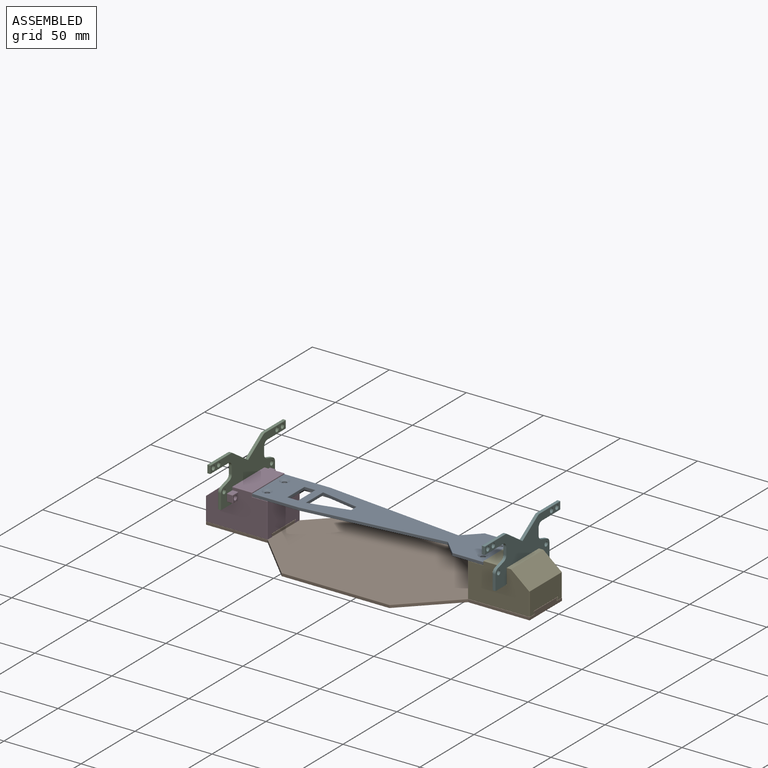
[diagram: assembled view]
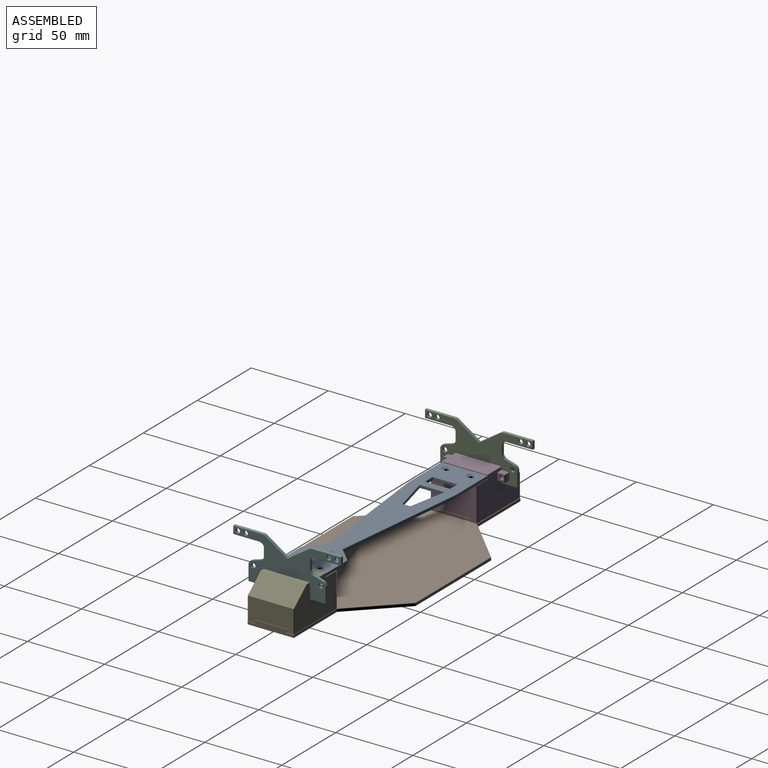
[diagram: assembled view, second angle]
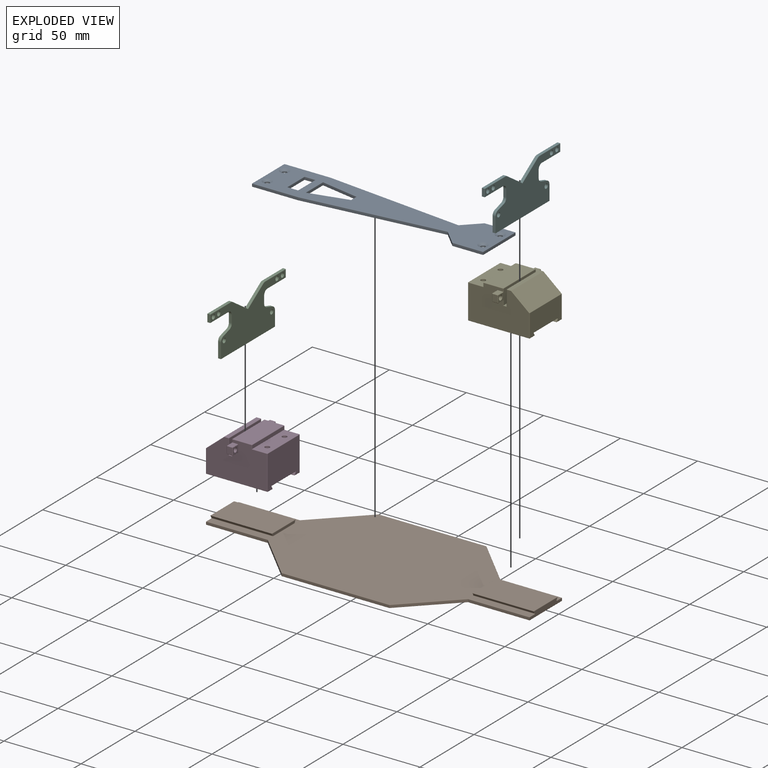
[diagram: exploded view]
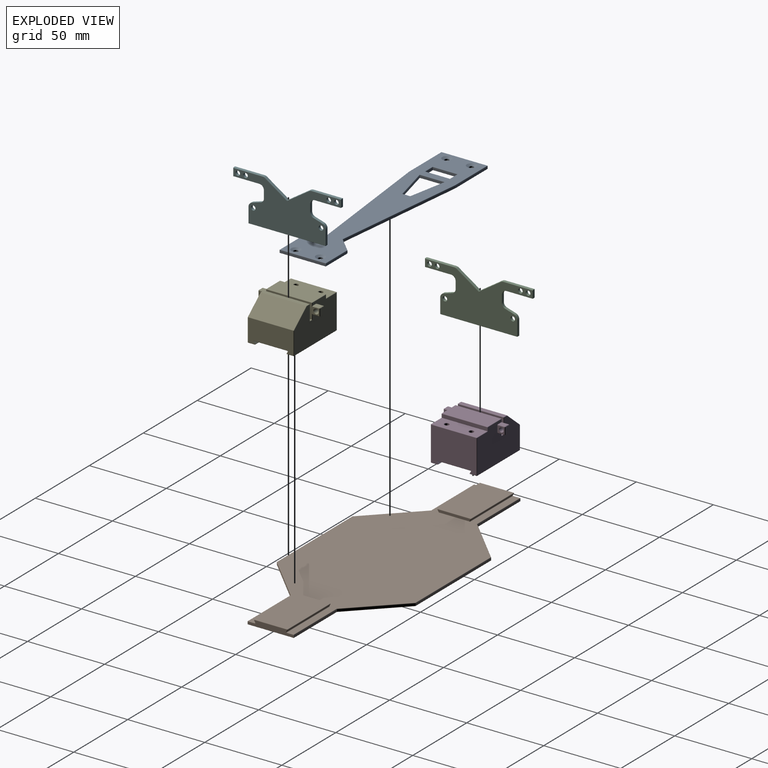
[diagram: exploded view, second angle]
ASSEMBLY  parts=6 mates=5
PART A: 62 faces, bbox 150x30x2 mm
  f0: plane 7x1.5mm, normal (0,-1,0), area 10.5mm2, adj f1,f18,f25,f42
  f1: plane 16x1.5mm, normal (-1,0,0), area 24mm2, adj f0,f2,f24,f40
  f2: plane 7.5x1.75mm, normal (0,1,0), area 12.3mm2, adj f1,f18,f23,f24,f26,f41
  f3: plane 16x1.5mm, normal (1,0,0), area 24mm2, adj f4,f19,f28,f46
  f4: plane 25x4.76mm, normal (-0.19,-0.98,0), area 38.2mm2, adj f3,f5,f27,f44
  f5: plane 5.51x1.75mm, normal (-1,0,0), area 8.8mm2, adj f4,f19,f23,f27,f29,f45
  f6: plane 90x10mm, normal (0.11,0.99,0), area 135.8mm2, adj f7,f20,f37,f55
  f7: plane 30x1.5mm, normal (0,1,0), area 45mm2, adj f6,f8,f35,f53
  f8: plane 30x1.5mm, normal (-1,0,0), area 45mm2, adj f7,f9,f33,f51
  f9: plane 30x1.5mm, normal (0,-1,0), area 45mm2, adj f8,f10,f31,f49
  f10: plane 90x10mm, normal (0.11,-0.99,0), area 135.8mm2, adj f9,f11,f30,f48
  f11: plane 10x10mm, normal (-0.71,-0.71,0), area 21.2mm2, adj f10,f12,f32,f50
  f12: plane 20x1.5mm, normal (0,-1,0), area 30mm2, adj f11,f13,f34,f52
  f13: plane 30x1.5mm, normal (1,0,0), area 45mm2, adj f12,f14,f36,f54
  f14: plane 20x1.5mm, normal (0,1,0), area 30mm2, adj f13,f20,f38,f56
  f15: cylinder r=1.5mm len=3mm, axis (0,0,-1), area 9.4mm2, adj f23,f59
  f16: cylinder r=1.5mm len=3mm, axis (0,0,-1), area 9.4mm2, adj f23,f60
  f17: cylinder r=1.5mm len=3mm, axis (0,0,-1), area 9.4mm2, adj f23,f61
  f18: plane 16x1.5mm, normal (1,0,0), area 24mm2, adj f0,f2,f26,f43
  f19: plane 25x6.24mm, normal (-0.24,0.97,0), area 38.7mm2, adj f3,f5,f29,f47
  f20: plane 10x10mm, normal (-0.71,0.71,0), area 21.2mm2, adj f6,f14,f39,f57
  f21: cylinder r=1.5mm len=3mm, axis (0,0,-1), area 9.4mm2, adj f23,f58
  f22: plane 149.5x29.5mm, normal (0,0,1), area 2890.2mm2, adj f40,f41,f42,f43,f44,f45,f46,f47
  f23: plane 149.5x29.5mm, normal (0,0,-1), area 2978.3mm2, adj f2,f5,f15,f16,f17,f21,f24,f25
  f24: cylinder r=0.25mm len=16.25mm, axis (0,-1,0), area 6.3mm2, adj f1,f2,f23,f25
  f25: cylinder r=0.25mm len=7.5mm, axis (1,0,0), area 2.8mm2, adj f0,f23,f24,f26
  f26: cylinder r=0.25mm len=16.25mm, axis (0,1,0), area 6.3mm2, adj f2,f18,f23,f25
  f27: cylinder r=0.25mm len=25.34mm, axis (0.98,-0.19,0), area 10mm2, adj f4,f5,f23,f28
  f28: cylinder r=0.25mm len=16.62mm, axis (0,1,0), area 6.4mm2, adj f3,f23,f27,f29
  f29: cylinder r=0.25mm len=25.37mm, axis (-0.97,-0.24,0), area 10.2mm2, adj f5,f19,f23,f28
  f30: cylinder r=0.25mm len=90.15mm, axis (0.99,0.11,0), area 35.6mm2, adj f10,f23,f31,f32
  f31: cylinder r=0.25mm len=30mm, axis (1,0,0), area 11.7mm2, adj f9,f23,f30,f33
  f32: cylinder r=0.25mm len=10.26mm, axis (0.71,-0.71,0), area 5.6mm2, adj f11,f23,f30,f34
  f33: cylinder r=0.25mm len=30mm, axis (0,-1,0), area 11.7mm2, adj f8,f23,f31,f35
  f34: cylinder r=0.25mm len=20mm, axis (1,0,0), area 7.8mm2, adj f12,f23,f32,f36
  f35: cylinder r=0.25mm len=30mm, axis (-1,0,0), area 11.7mm2, adj f7,f23,f33,f37
  f36: cylinder r=0.25mm len=30mm, axis (0,1,0), area 11.7mm2, adj f13,f23,f34,f38
  f37: cylinder r=0.25mm len=90.15mm, axis (-0.99,0.11,0), area 35.6mm2, adj f6,f23,f35,f39
  f38: cylinder r=0.25mm len=20mm, axis (-1,0,0), area 7.8mm2, adj f14,f23,f36,f39
  f39: cylinder r=0.25mm len=10.26mm, axis (-0.71,-0.71,0), area 5.6mm2, adj f20,f23,f37,f38
  f40: cylinder r=0.25mm len=16.5mm, axis (0,1,0), area 6.4mm2, adj f1,f22,f41,f42
  f41: cylinder r=0.25mm len=7.5mm, axis (1,0,0), area 2.8mm2, adj f2,f22,f40,f43
  f42: cylinder r=0.25mm len=7.5mm, axis (-1,0,0), area 2.8mm2, adj f0,f22,f40,f43
  f43: cylinder r=0.25mm len=16.5mm, axis (0,-1,0), area 6.4mm2, adj f18,f22,f41,f42
  f44: cylinder r=0.25mm len=25.55mm, axis (-0.98,0.19,0), area 10.1mm2, adj f4,f22,f45,f46
  f45: cylinder r=0.25mm len=5.4mm, axis (0,1,0), area 2mm2, adj f5,f22,f44,f47
  f46: cylinder r=0.25mm len=16.62mm, axis (0,-1,0), area 6.4mm2, adj f3,f22,f44,f47
  f47: cylinder r=0.25mm len=25.56mm, axis (0.97,0.24,0), area 10.2mm2, adj f19,f22,f45,f46
  f48: cylinder r=0.25mm len=90.15mm, axis (-0.99,-0.11,0), area 35.6mm2, adj f10,f22,f49,f50
  f49: cylinder r=0.25mm len=30mm, axis (-1,0,0), area 11.7mm2, adj f9,f22,f48,f51
  f50: cylinder r=0.25mm len=10.26mm, axis (-0.71,0.71,0), area 5.6mm2, adj f11,f22,f48,f52
  f51: cylinder r=0.25mm len=30mm, axis (0,1,0), area 11.7mm2, adj f8,f22,f49,f53
  f52: cylinder r=0.25mm len=20mm, axis (-1,0,0), area 7.8mm2, adj f12,f22,f50,f54
  f53: cylinder r=0.25mm len=30mm, axis (1,0,0), area 11.7mm2, adj f7,f22,f51,f55
  f54: cylinder r=0.25mm len=30mm, axis (0,-1,0), area 11.7mm2, adj f13,f22,f52,f56
  f55: cylinder r=0.25mm len=90.15mm, axis (0.99,-0.11,0), area 35.6mm2, adj f6,f22,f53,f57
  f56: cylinder r=0.25mm len=20mm, axis (1,0,0), area 7.8mm2, adj f14,f22,f54,f57
  f57: cylinder r=0.25mm len=10.26mm, axis (0.71,0.71,0), area 5.6mm2, adj f20,f22,f55,f56
  f58: cone r=1.5mm half-angle=56.3deg, axis (0,0,1), area 25.5mm2, adj f21,f22
  f59: cone r=1.5mm half-angle=56.3deg, axis (0,0,1), area 25.5mm2, adj f15,f22
  f60: cone r=1.5mm half-angle=56.3deg, axis (0,0,1), area 25.5mm2, adj f16,f22
  f61: cone r=1.5mm half-angle=56.3deg, axis (0,0,1), area 25.5mm2, adj f17,f22
PART B: 83 faces, bbox 210x90x4.1 mm
  f0: plane 30x3.5mm, normal (1,0,0), area 85.9mm2, adj f6,f7,f23,f24,f30,f39,f45,f47
  f1: plane 30x3.5mm, normal (-1,0,0), area 85.9mm2, adj f2,f11,f46,f48,f53,f62,f65,f68
  f2: plane 40x1.5mm, normal (0,-1,0), area 60mm2, adj f1,f3,f69,f72
  f3: plane 30x30mm, normal (-0.71,-0.71,0), area 63.6mm2, adj f2,f4,f67,f71
  f4: plane 70x1.5mm, normal (0,-1,0), area 105mm2, adj f3,f5,f64,f73
  f5: plane 30x30mm, normal (0.71,-0.71,0), area 63.6mm2, adj f4,f6,f61,f75
  f6: plane 40x1.5mm, normal (0,-1,0), area 60mm2, adj f0,f5,f57,f77
  f7: plane 40x1.5mm, normal (0,1,0), area 60mm2, adj f0,f8,f25,f81
  f8: plane 30x30mm, normal (0.71,0.71,0), area 63.6mm2, adj f7,f9,f31,f82
  f9: plane 70x1.5mm, normal (0,1,0), area 105mm2, adj f8,f10,f35,f80
  f10: plane 30x30mm, normal (-0.71,0.71,0), area 63.6mm2, adj f9,f11,f40,f78
  f11: plane 40x1.5mm, normal (0,1,0), area 60mm2, adj f1,f10,f43,f76
  f12: plane 209.5x89.5mm, normal (0,0,1), area 10498.8mm2, adj f23,f25,f26,f31,f32,f35,f36,f40
  f13: plane 209.5x89.5mm, normal (0,0,-1), area 12167.8mm2, adj f71,f72,f73,f74,f75,f76,f77,f78
  f14: plane 39.5x1.25mm, normal (0,-0.87,-0.5), area 57mm2, adj f37,f38,f44,f45
  f15: plane 39.5x1.25mm, normal (0,0.87,-0.5), area 57mm2, adj f26,f27,f29,f30
  f16: plane 39.5x21.44mm, normal (0,0,1), area 847mm2, adj f28,f29,f38,f39
  f17: plane 21.44x1.5mm, normal (-1,0,0), area 30.9mm2, adj f27,f28,f36,f37
  f18: plane 39.5x1.25mm, normal (0,0.87,-0.5), area 57mm2, adj f50,f51,f53,f54
  f19: plane 39.5x1.63mm, normal (0,-0.87,-0.5), area 74.1mm2, adj f20,f59,f65,f66
  f20: plane 39.5x21.88mm, normal (0,0,1), area 864.1mm2, adj f19,f54,f55,f62
  f21: plane 21.44x1.5mm, normal (1,0,0), area 30.9mm2, adj f50,f55,f59,f60
  f22: sphere r=0.25mm, area 0.1mm2, adj f27,f28,f29
  f23: cylinder r=0.25mm len=4.57mm, axis (0,-1,0), area 1.8mm2, adj f0,f12,f24,f25
  f24: torus R=0.5mm, axis (1,0,0), area 0.3mm2, adj f0,f23,f26,f30
  f25: cylinder r=0.25mm len=40.1mm, axis (1,0,0), area 15.7mm2, adj f7,f12,f23,f31
  f26: cylinder r=0.25mm len=39.5mm, axis (1,0,0), area 20.7mm2, adj f12,f15,f24,f32
  f27: cylinder r=0.25mm len=1.63mm, axis (0,-0.5,-0.87), area 0.6mm2, adj f15,f17,f22,f32
  f28: cylinder r=0.25mm len=21.44mm, axis (0,1,0), area 8.4mm2, adj f16,f17,f22,f33
  f29: cylinder r=0.25mm len=39.5mm, axis (1,0,0), area 20.7mm2, adj f15,f16,f22,f34
  f30: cylinder r=0.25mm len=1.38mm, axis (0,0.5,0.87), area 0.6mm2, adj f0,f15,f24,f34
  f31: cylinder r=0.25mm len=30.25mm, axis (0.71,-0.71,0), area 16.7mm2, adj f8,f12,f25,f35
  f32: bspline ~0.68x0.59mm, area 0.3mm2, adj f12,f26,f27,f36
  f33: sphere r=0.25mm, area 0.1mm2, adj f28,f37,f38
  f34: sphere r=0.25mm, area 0.1mm2, adj f29,f30,f39
  f35: cylinder r=0.25mm len=70mm, axis (1,0,0), area 27.5mm2, adj f9,f12,f31,f40
  f36: cylinder r=0.25mm len=19.71mm, axis (0,-1,0), area 7.7mm2, adj f12,f17,f32,f41
  f37: cylinder r=0.25mm len=1.63mm, axis (0,-0.5,0.87), area 0.6mm2, adj f14,f17,f33,f41
  f38: cylinder r=0.25mm len=39.5mm, axis (1,0,0), area 20.7mm2, adj f14,f16,f33,f42
  f39: cylinder r=0.25mm len=21.44mm, axis (0,-1,0), area 8.4mm2, adj f0,f16,f34,f42
  f40: cylinder r=0.25mm len=30.25mm, axis (0.71,0.71,0), area 16.7mm2, adj f10,f12,f35,f43
  f41: bspline ~0.68x0.5mm, area 0.3mm2, adj f12,f36,f37,f44
  f42: sphere r=0.25mm, area 0.1mm2, adj f38,f39,f45
  f43: cylinder r=0.25mm len=40.1mm, axis (1,0,0), area 15.7mm2, adj f11,f12,f40,f46
  f44: cylinder r=0.25mm len=39.5mm, axis (1,0,0), area 20.7mm2, adj f12,f14,f41,f47
  f45: cylinder r=0.25mm len=1.38mm, axis (0,0.5,-0.87), area 0.6mm2, adj f0,f14,f42,f47
  f46: cylinder r=0.25mm len=4.57mm, axis (0,1,0), area 1.8mm2, adj f1,f12,f43,f48
  f47: torus R=0.5mm, axis (1,0,0), area 0.3mm2, adj f0,f44,f45,f52
  f48: torus R=0.5mm, axis (1,0,0), area 0.3mm2, adj f1,f46,f51,f53
  f49: sphere r=0.25mm, area 0.1mm2, adj f50,f54,f55
  f50: cylinder r=0.25mm len=1.63mm, axis (0,0.5,0.87), area 0.6mm2, adj f18,f21,f49,f56
  f51: cylinder r=0.25mm len=39.5mm, axis (-1,0,0), area 20.7mm2, adj f12,f18,f48,f56
  f52: cylinder r=0.25mm len=4.57mm, axis (0,-1,0), area 1.8mm2, adj f0,f12,f47,f57
  f53: cylinder r=0.25mm len=1.38mm, axis (0,0.5,0.87), area 0.6mm2, adj f1,f18,f48,f58
  f54: cylinder r=0.25mm len=39.5mm, axis (-1,0,0), area 20.7mm2, adj f18,f20,f49,f58
  f55: cylinder r=0.25mm len=21.88mm, axis (0,-1,0), area 8.5mm2, adj f20,f21,f49,f59
  f56: bspline ~0.6x0.5mm, area 0.3mm2, adj f12,f50,f51,f60
  f57: cylinder r=0.25mm len=40.1mm, axis (-1,0,0), area 15.7mm2, adj f6,f12,f52,f61
  f58: sphere r=0.25mm, area 0.1mm2, adj f53,f54,f62
  f59: cylinder r=0.25mm len=2mm, axis (0,0.5,-0.87), area 0.7mm2, adj f19,f21,f55,f63
  f60: cylinder r=0.25mm len=19.71mm, axis (0,-1,0), area 7.7mm2, adj f12,f21,f56,f63
  f61: cylinder r=0.25mm len=30.25mm, axis (-0.71,-0.71,0), area 16.7mm2, adj f5,f12,f57,f64
  f62: cylinder r=0.25mm len=21.88mm, axis (0,-1,0), area 8.5mm2, adj f1,f20,f58,f65
  f63: bspline ~0.68x0.59mm, area 0.3mm2, adj f12,f59,f60,f66
  f64: cylinder r=0.25mm len=70mm, axis (-1,0,0), area 27.5mm2, adj f4,f12,f61,f67
  f65: cylinder r=0.25mm len=1.75mm, axis (0,0.5,-0.87), area 0.7mm2, adj f1,f19,f62,f68
  f66: cylinder r=0.25mm len=39.5mm, axis (-1,0,0), area 20.7mm2, adj f12,f19,f63,f68
  f67: cylinder r=0.25mm len=30.25mm, axis (-0.71,0.71,0), area 16.7mm2, adj f3,f12,f64,f69
  f68: torus R=0.5mm, axis (1,0,0), area 0.3mm2, adj f1,f65,f66,f70
  f69: cylinder r=0.25mm len=40.1mm, axis (-1,0,0), area 15.7mm2, adj f2,f12,f67,f70
  f70: cylinder r=0.25mm len=4.57mm, axis (0,1,0), area 1.8mm2, adj f1,f12,f68,f69
  f71: cylinder r=0.25mm len=30.25mm, axis (0.71,-0.71,0), area 16.7mm2, adj f3,f13,f72,f73
  f72: cylinder r=0.25mm len=40.1mm, axis (1,0,0), area 15.7mm2, adj f2,f13,f71,f74
  f73: cylinder r=0.25mm len=70mm, axis (1,0,0), area 27.5mm2, adj f4,f13,f71,f75
  f74: cylinder r=0.25mm len=30mm, axis (0,-1,0), area 11.7mm2, adj f1,f13,f72,f76
  f75: cylinder r=0.25mm len=30.25mm, axis (0.71,0.71,0), area 16.7mm2, adj f5,f13,f73,f77
  f76: cylinder r=0.25mm len=40.1mm, axis (-1,0,0), area 15.7mm2, adj f11,f13,f74,f78
  f77: cylinder r=0.25mm len=40.1mm, axis (1,0,0), area 15.7mm2, adj f6,f13,f75,f79
  f78: cylinder r=0.25mm len=30.25mm, axis (-0.71,-0.71,0), area 16.7mm2, adj f10,f13,f76,f80
  f79: cylinder r=0.25mm len=30mm, axis (0,1,0), area 11.7mm2, adj f0,f13,f77,f81
  f80: cylinder r=0.25mm len=70mm, axis (-1,0,0), area 27.5mm2, adj f9,f13,f78,f82
  f81: cylinder r=0.25mm len=40.1mm, axis (-1,0,0), area 15.7mm2, adj f7,f13,f79,f82
  f82: cylinder r=0.25mm len=30.25mm, axis (-0.71,0.71,0), area 16.7mm2, adj f8,f13,f80,f81
PART C: 67 faces, bbox 70x2x30.2 mm
  f0: plane 5.72x1.75mm, normal (0.29,0,0.96), area 10.5mm2, adj f1,f27,f30,f64
  f1: cylinder r=3mm len=2.87mm, axis (0,1,0), area 6.7mm2, adj f0,f2,f30,f62
  f2: plane 4.77x1.75mm, normal (1,0,0), area 8.3mm2, adj f1,f3,f30,f60
  f3: cylinder r=3mm len=3mm, axis (0,1,0), area 8.2mm2, adj f2,f4,f30,f58
  f4: plane 17x1.75mm, normal (0,0,-1), area 29.7mm2, adj f3,f5,f30,f31,f56
  f5: plane 5x1.5mm, normal (1,0,0), area 7.5mm2, adj f4,f6,f31,f54
  f6: plane 19.09x1.5mm, normal (0,0,1), area 28.6mm2, adj f5,f7,f32,f52
  f7: cylinder r=3mm len=1.66mm, axis (0,1,0), area 2.6mm2, adj f6,f8,f33,f50
  f8: plane 14.24x9.5mm, normal (-0.55,0,0.83), area 25.7mm2, adj f7,f9,f34,f48
  f9: plane 14.24x9.5mm, normal (0.55,0,0.83), area 25.7mm2, adj f8,f10,f35,f46
  f10: cylinder r=3mm len=1.66mm, axis (0,1,0), area 2.6mm2, adj f9,f11,f36,f44
  f11: plane 19.09x1.5mm, normal (0,0,1), area 28.6mm2, adj f10,f12,f37,f43
  f12: plane 5x1.75mm, normal (-1,0,0), area 8.7mm2, adj f11,f13,f30,f37,f45
  f13: plane 17x1.75mm, normal (0,0,-1), area 29.8mm2, adj f12,f14,f30,f47
  f14: cylinder r=3mm len=3mm, axis (0,1,0), area 8.2mm2, adj f13,f15,f30,f49
  f15: plane 4.77x1.75mm, normal (-1,0,0), area 8.3mm2, adj f14,f16,f30,f51
  f16: cylinder r=3mm len=2.87mm, axis (0,1,0), area 6.7mm2, adj f15,f17,f30,f53
  f17: plane 5.72x1.75mm, normal (-0.29,0,0.96), area 10.5mm2, adj f16,f18,f30,f55
  f18: cylinder r=3mm len=2.87mm, axis (0,1,0), area 6.7mm2, adj f17,f19,f30,f57
  f19: plane 9.77x1.75mm, normal (-1,0,0), area 17.1mm2, adj f18,f20,f30,f59
  f20: plane 50x1.75mm, normal (0,0,-1), area 87.5mm2, adj f19,f21,f30,f61
  f21: plane 9.77x1.75mm, normal (1,0,0), area 17.1mm2, adj f20,f27,f30,f63
  f22: cylinder r=1.5mm len=3mm, axis (0,1,0), area 16.5mm2, adj f30,f38
  f23: cylinder r=1.5mm len=3mm, axis (0,1,0), area 16.5mm2, adj f30,f39
  f24: cylinder r=1.5mm len=3mm, axis (0,1,0), area 16.5mm2, adj f30,f40
  f25: cylinder r=1.5mm len=3mm, axis (0,1,0), area 16.5mm2, adj f30,f41
  f26: cylinder r=1.5mm len=3mm, axis (0,1,0), area 16.5mm2, adj f30,f42
  f27: cylinder r=3mm len=2.87mm, axis (0,1,0), area 6.7mm2, adj f0,f21,f30,f65
  f28: cylinder r=1.5mm len=3mm, axis (0,1,0), area 16.5mm2, adj f30,f66
  f29: plane 69.5x29.5mm, normal (0,-1,0), area 1107.3mm2, adj f38,f39,f40,f41,f42,f43,f44,f45
  f30: plane 69.75x29.75mm, normal (0,1,0), area 1161.1mm2, adj f0,f1,f2,f3,f4,f12,f13,f14
  f31: cylinder r=0.25mm len=5mm, axis (0,0,1), area 1.9mm2, adj f4,f5,f30,f32
  f32: cylinder r=0.25mm len=19.09mm, axis (-1,0,0), area 7.5mm2, adj f6,f30,f31,f33
  f33: torus R=2.75mm, axis (0,-1,0), area 0.7mm2, adj f7,f30,f32,f34
  f34: cylinder r=0.25mm len=14.52mm, axis (-0.83,0,-0.55), area 6.7mm2, adj f8,f30,f33,f35
  f35: cylinder r=0.25mm len=14.52mm, axis (-0.83,0,0.55), area 6.7mm2, adj f9,f30,f34,f36
  f36: torus R=2.75mm, axis (0,-1,0), area 0.7mm2, adj f10,f30,f35,f37
  f37: cylinder r=0.25mm len=19.09mm, axis (-1,0,0), area 7.5mm2, adj f11,f12,f30,f36
  f38: torus R=1.75mm, axis (0,-1,0), area 3.9mm2, adj f22,f29
  f39: torus R=1.75mm, axis (0,-1,0), area 3.9mm2, adj f23,f29
  f40: torus R=1.75mm, axis (0,-1,0), area 3.9mm2, adj f24,f29
  f41: torus R=1.75mm, axis (0,-1,0), area 3.9mm2, adj f25,f29
  f42: torus R=1.75mm, axis (0,-1,0), area 3.9mm2, adj f26,f29
  f43: cylinder r=0.25mm len=19.09mm, axis (1,0,0), area 7.5mm2, adj f11,f29,f44,f45
  f44: torus R=2.75mm, axis (0,-1,0), area 0.7mm2, adj f10,f29,f43,f46
  f45: cylinder r=0.25mm len=5mm, axis (0,0,1), area 1.9mm2, adj f12,f29,f43,f47
  f46: cylinder r=0.25mm len=14.52mm, axis (0.83,0,-0.55), area 6.7mm2, adj f9,f29,f44,f48
  f47: cylinder r=0.25mm len=17mm, axis (-1,0,0), area 6.6mm2, adj f13,f29,f45,f49
  f48: cylinder r=0.25mm len=14.52mm, axis (0.83,0,0.55), area 6.7mm2, adj f8,f29,f46,f50
  f49: torus R=3.25mm, axis (0,-1,0), area 1.9mm2, adj f14,f29,f47,f51
  f50: torus R=2.75mm, axis (0,-1,0), area 0.7mm2, adj f7,f29,f48,f52
  f51: cylinder r=0.25mm len=4.77mm, axis (0,0,1), area 1.9mm2, adj f15,f29,f49,f53
  f52: cylinder r=0.25mm len=19.09mm, axis (1,0,0), area 7.5mm2, adj f6,f29,f50,f54
  f53: torus R=3.25mm, axis (0,-1,0), area 1.6mm2, adj f16,f29,f51,f55
  f54: cylinder r=0.25mm len=5mm, axis (0,0,-1), area 1.9mm2, adj f5,f29,f52,f56
  f55: cylinder r=0.25mm len=5.8mm, axis (0.96,0,0.29), area 2.3mm2, adj f17,f29,f53,f57
  f56: cylinder r=0.25mm len=17mm, axis (-1,0,0), area 6.6mm2, adj f4,f29,f54,f58
  f57: torus R=2.75mm, axis (0,-1,0), area 1.5mm2, adj f18,f29,f55,f59
  f58: torus R=3.25mm, axis (0,-1,0), area 1.9mm2, adj f3,f29,f56,f60
  f59: cylinder r=0.25mm len=9.77mm, axis (0,0,1), area 3.8mm2, adj f19,f29,f57,f61
  f60: cylinder r=0.25mm len=4.77mm, axis (0,0,-1), area 1.9mm2, adj f2,f29,f58,f62
  f61: cylinder r=0.25mm len=50mm, axis (-1,0,0), area 19.6mm2, adj f20,f29,f59,f63
  f62: torus R=3.25mm, axis (0,-1,0), area 1.6mm2, adj f1,f29,f60,f64
  f63: cylinder r=0.25mm len=9.77mm, axis (0,0,-1), area 3.8mm2, adj f21,f29,f61,f65
  f64: cylinder r=0.25mm len=5.8mm, axis (0.96,0,-0.29), area 2.3mm2, adj f0,f29,f62,f65
  f65: torus R=2.75mm, axis (0,-1,0), area 1.5mm2, adj f27,f29,f63,f64
  f66: torus R=1.75mm, axis (0,-1,0), area 3.9mm2, adj f28,f29
PART D: 116 faces, bbox 40x40x25 mm
  f0: plane 29.5x12.5mm, normal (0,0,1), area 368.7mm2, adj f57,f60,f61,f62
  f1: plane 29.5x22.25mm, normal (0,1,0), area 606.1mm2, adj f4,f64,f70,f73,f74,f77,f78,f85
  f2: plane 39.5x24.5mm, normal (-1,0,0), area 841.3mm2, adj f14,f15,f16,f29,f35,f49,f55,f60
  f3: plane 39.5x24.5mm, normal (1,0,0), area 840.6mm2, adj f18,f19,f20,f36,f41,f56,f61,f67
  f4: plane 39.75x4.32mm, normal (0,0,-1), area 171.6mm2, adj f1,f85,f97,f98
  f5: plane 29.5x14.63mm, normal (0,-1,0), area 387.6mm2, adj f71,f79,f86,f87,f98,f99,f107,f108
  f6: plane 29.5x2.66mm, normal (0,0,1), area 78.5mm2, adj f94,f95,f105,f106
  f7: plane 39.5x4.32mm, normal (0,0,-1), area 170.5mm2, adj f72,f73,f87,f88
  f8: plane 39.5x1.63mm, normal (0.87,0,0.5), area 74.1mm2, adj f10,f64,f71,f72
  f9: plane 39.5x1.63mm, normal (-0.87,0,0.5), area 74.1mm2, adj f10,f78,f85,f86
  f10: plane 39.5x22.31mm, normal (0,0,-1), area 881.2mm2, adj f8,f9,f70,f79
  f11: plane 29.5x9.75mm, normal (0,1,0), area 287.6mm2, adj f13,f82,f95,f96
  f12: plane 39.5x9.75mm, normal (0,-1,0), area 313.4mm2, adj f13,f24,f26,f27,f38,f44,f47,f55
  f13: plane 29.5x2mm, normal (0,0,1), area 59mm2, adj f11,f12,f75,f90
  f14: plane 4.75x3.5mm, normal (0,0,1), area 16.6mm2, adj f2,f26,f32,f35
  f15: plane 4.75x4.5mm, normal (0,1,0), area 14.3mm2, adj f2,f23,f29,f33,f35
  f16: plane 4.75x3.5mm, normal (0,0,-1), area 16.6mm2, adj f2,f24,f28,f29
  f17: plane 4.5x3.5mm, normal (-1,0,0), area 15.8mm2, adj f27,f28,f32,f33
  f18: plane 4.75x3.5mm, normal (0,0,1), area 16.6mm2, adj f3,f36,f38,f39
  f19: plane 4.75x3.5mm, normal (0,0,-1), area 16.6mm2, adj f3,f41,f45,f47
  f20: plane 4.75x4.5mm, normal (0,1,0), area 14.3mm2, adj f3,f22,f36,f40,f41
  f21: plane 4.5x3.5mm, normal (1,0,0), area 15.8mm2, adj f39,f40,f44,f45
  f22: cylinder r=1.5mm len=3.75mm, axis (0,-1,0), area 35.3mm2, adj f20,f114
  f23: cylinder r=1.5mm len=3.75mm, axis (0,-1,0), area 35.3mm2, adj f15,f115
  f24: plane 5x0.25mm, normal (0,-0.71,-0.71), area 1.7mm2, adj f12,f16,f25,f66
  f25: plane 0.25x0.25mm, normal (-0.58,-0.58,-0.58), area 0.1mm2, adj f24,f27,f28
  f26: plane 5x0.25mm, normal (0,-0.71,0.71), area 1.7mm2, adj f12,f14,f30,f55
  f27: plane 4.5x0.25mm, normal (-0.71,-0.71,0), area 1.6mm2, adj f12,f17,f25,f30
  f28: plane 3.5x0.25mm, normal (-0.71,0,-0.71), area 1.2mm2, adj f16,f17,f25,f31
  f29: plane 4.75x0.25mm, normal (0,0.71,-0.71), area 1.7mm2, adj f2,f15,f16,f31
  f30: plane 0.25x0.25mm, normal (-0.58,-0.58,0.58), area 0.1mm2, adj f26,f27,f32
  f31: plane 0.25x0.25mm, normal (-0.58,0.58,-0.58), area 0.1mm2, adj f28,f29,f33
  f32: plane 3.5x0.25mm, normal (-0.71,0,0.71), area 1.2mm2, adj f14,f17,f30,f34
  f33: plane 4.5x0.25mm, normal (-0.71,0.71,0), area 1.6mm2, adj f15,f17,f31,f34
  f34: plane 0.25x0.25mm, normal (-0.58,0.58,0.58), area 0.1mm2, adj f32,f33,f35
  f35: plane 4.75x0.25mm, normal (0,0.71,0.71), area 1.7mm2, adj f2,f14,f15,f34
  f36: plane 4.75x0.25mm, normal (0,0.71,0.71), area 1.7mm2, adj f3,f18,f20,f37
  f37: plane 0.25x0.25mm, normal (0.58,0.58,0.58), area 0.1mm2, adj f36,f39,f40
  f38: plane 5x0.25mm, normal (0,-0.71,0.71), area 1.7mm2, adj f12,f18,f42,f56
  f39: plane 3.5x0.25mm, normal (0.71,0,0.71), area 1.2mm2, adj f18,f21,f37,f42
  f40: plane 4.5x0.25mm, normal (0.71,0.71,0), area 1.6mm2, adj f20,f21,f37,f43
  f41: plane 4.75x0.25mm, normal (0,0.71,-0.71), area 1.7mm2, adj f3,f19,f20,f43
  f42: plane 0.25x0.25mm, normal (0.58,-0.58,0.58), area 0.1mm2, adj f38,f39,f44
  f43: plane 0.25x0.25mm, normal (0.58,0.58,-0.58), area 0.1mm2, adj f40,f41,f45
  f44: plane 4.5x0.25mm, normal (0.71,-0.71,0), area 1.6mm2, adj f12,f21,f42,f46
  f45: plane 3.5x0.25mm, normal (0.71,0,-0.71), area 1.2mm2, adj f19,f21,f43,f46
  f46: plane 0.25x0.25mm, normal (0.58,-0.58,-0.58), area 0.1mm2, adj f44,f45,f47
  f47: plane 5x0.25mm, normal (0,-0.71,-0.71), area 1.7mm2, adj f12,f19,f46,f83
  f48: plane 29.5x9.75mm, normal (0,0,1), area 268.4mm2, adj f49,f65,f76,f77,f112,f113
  f49: plane 29.75x2.5mm, normal (0,1,0), area 67mm2, adj f2,f48,f62,f65,f67
  f50: cylinder r=1.5mm len=9.75mm, axis (0,0,1), area 91.9mm2, adj f51,f112
  f51: plane 3x3mm, normal (0,0,1), area 7.1mm2, adj f50
  f52: cylinder r=1.5mm len=9.75mm, axis (0,0,1), area 91.9mm2, adj f53,f113
  f53: plane 3x3mm, normal (0,0,1), area 7.1mm2, adj f52
  f54: plane 29.5x11.84mm, normal (0,-0.64,0.77), area 454.7mm2, adj f100,f105,f108,f111
  f55: cylinder r=0.25mm len=2mm, axis (0,0,-1), area 0.7mm2, adj f2,f12,f26,f58
  f56: cylinder r=0.25mm len=2mm, axis (0,0,1), area 0.7mm2, adj f3,f12,f38,f59
  f57: cylinder r=0.25mm len=29.5mm, axis (1,0,0), area 11.6mm2, adj f0,f12,f58,f59
  f58: sphere r=0.25mm, area 0.1mm2, adj f55,f57,f60
  f59: sphere r=0.25mm, area 0.1mm2, adj f56,f57,f61
  f60: cylinder r=0.25mm len=12.75mm, axis (0,1,0), area 5mm2, adj f0,f2,f58,f62
  f61: cylinder r=0.25mm len=12.5mm, axis (0,-1,0), area 4.9mm2, adj f0,f3,f59,f63
  f62: cylinder r=0.25mm len=29.75mm, axis (-1,0,0), area 11.6mm2, adj f0,f49,f60,f63
  f63: sphere r=0.25mm, area 0.1mm2, adj f61,f62,f67
  f64: cylinder r=0.25mm len=2.13mm, axis (-0.5,0,0.87), area 0.8mm2, adj f1,f8,f68,f70
  f65: cylinder r=0.25mm len=9.75mm, axis (0,-1,0), area 3.8mm2, adj f2,f48,f49,f69
  f66: cylinder r=0.25mm len=3.5mm, axis (0,0,-1), area 1.3mm2, adj f2,f12,f24,f75
  f67: cylinder r=0.25mm len=2.5mm, axis (0,0,-1), area 0.9mm2, adj f3,f49,f63,f76
  f68: sphere r=0.25mm, area 0.1mm2, adj f64,f72,f73
  f69: sphere r=0.25mm, area 0.1mm2, adj f65,f74,f77
  f70: cylinder r=0.25mm len=23.18mm, axis (1,0,0), area 8.9mm2, adj f1,f10,f64,f78
  f71: cylinder r=0.25mm len=2.13mm, axis (-0.5,0,0.87), area 0.8mm2, adj f5,f8,f79,f80
  f72: cylinder r=0.25mm len=39.5mm, axis (0,1,0), area 20.7mm2, adj f7,f8,f68,f80
  f73: cylinder r=0.25mm len=4.32mm, axis (-1,0,0), area 1.7mm2, adj f1,f7,f68,f81
  f74: cylinder r=0.25mm len=22mm, axis (0,0,-1), area 8.6mm2, adj f1,f2,f69,f81
  f75: cylinder r=0.25mm len=2.5mm, axis (0,1,0), area 0.9mm2, adj f2,f13,f66,f82
  f76: cylinder r=0.25mm len=10mm, axis (0,1,0), area 3.9mm2, adj f3,f48,f67,f84
  f77: cylinder r=0.25mm len=29.5mm, axis (-1,0,0), area 11.6mm2, adj f1,f48,f69,f84
  f78: cylinder r=0.25mm len=2.34mm, axis (-0.5,0,-0.87), area 0.9mm2, adj f1,f9,f70,f85
  f79: cylinder r=0.25mm len=23.18mm, axis (1,0,0), area 8.9mm2, adj f5,f10,f71,f86
  f80: sphere r=0.25mm, area 0.1mm2, adj f71,f72,f87
  f81: sphere r=0.25mm, area 0.1mm2, adj f73,f74,f88
  f82: cylinder r=0.25mm len=10mm, axis (0,0,1), area 3.9mm2, adj f2,f11,f75,f89
  f83: cylinder r=0.25mm len=3.5mm, axis (0,0,1), area 1.3mm2, adj f3,f12,f47,f90
  f84: sphere r=0.25mm, area 0.1mm2, adj f76,f77,f91
  f85: cylinder r=0.25mm len=39.75mm, axis (0,1,0), area 20.8mm2, adj f1,f4,f9,f78,f92
  f86: cylinder r=0.25mm len=2.13mm, axis (-0.5,0,-0.87), area 0.8mm2, adj f5,f9,f79,f92
  f87: cylinder r=0.25mm len=4.32mm, axis (1,0,0), area 1.7mm2, adj f5,f7,f80,f93
  f88: cylinder r=0.25mm len=39.5mm, axis (0,-1,0), area 15.5mm2, adj f2,f7,f81,f93
  f89: sphere r=0.25mm, area 0.1mm2, adj f82,f94,f95
  f90: cylinder r=0.25mm len=2.5mm, axis (0,-1,0), area 0.9mm2, adj f3,f13,f83,f96
  f91: cylinder r=0.25mm len=22.25mm, axis (0,0,1), area 8.7mm2, adj f1,f3,f84,f97
  f92: sphere r=0.25mm, area 0.1mm2, adj f85,f86,f98
  f93: sphere r=0.25mm, area 0.1mm2, adj f87,f88,f99
  f94: cylinder r=0.25mm len=2.66mm, axis (0,1,0), area 1mm2, adj f2,f6,f89,f101
  f95: cylinder r=0.25mm len=29.5mm, axis (-1,0,0), area 11.6mm2, adj f6,f11,f89,f102
  f96: cylinder r=0.25mm len=10mm, axis (0,0,-1), area 3.9mm2, adj f3,f11,f90,f102
  f97: cylinder r=0.25mm len=39.75mm, axis (0,1,0), area 15.6mm2, adj f3,f4,f91,f103
  f98: cylinder r=0.25mm len=4.32mm, axis (1,0,0), area 1.7mm2, adj f4,f5,f92,f103
  f99: cylinder r=0.25mm len=14.63mm, axis (0,0,1), area 5.7mm2, adj f2,f5,f93,f104
  f100: cylinder r=0.25mm len=12mm, axis (0,0.77,0.64), area 6.1mm2, adj f2,f54,f101,f104
  f101: sphere r=0.25mm, area 0mm2, adj f94,f100,f105
  f102: sphere r=0.25mm, area 0.1mm2, adj f95,f96,f106
  f103: sphere r=0.25mm, area 0.1mm2, adj f97,f98,f107
  f104: sphere r=0.25mm, area 0.1mm2, adj f99,f100,f108
  f105: cylinder r=0.25mm len=29.5mm, axis (-1,0,0), area 5.1mm2, adj f6,f54,f101,f109
  f106: cylinder r=0.25mm len=2.66mm, axis (0,-1,0), area 1mm2, adj f3,f6,f102,f109
  f107: cylinder r=0.25mm len=14.63mm, axis (0,0,-1), area 5.7mm2, adj f3,f5,f103,f110
  f108: cylinder r=0.25mm len=29.5mm, axis (1,0,0), area 6.5mm2, adj f5,f54,f104,f110
  f109: sphere r=0.25mm, area 0mm2, adj f105,f106,f111
  f110: sphere r=0.25mm, area 0.1mm2, adj f107,f108,f111
  f111: cylinder r=0.25mm len=12mm, axis (0,0.77,0.64), area 6.1mm2, adj f3,f54,f109,f110
  f112: torus R=1.75mm, axis (0,0,-1), area 3.9mm2, adj f48,f50
  f113: torus R=1.75mm, axis (0,0,-1), area 3.9mm2, adj f48,f52
  f114: torus R=1.75mm, axis (0,-1,0), area 3.9mm2, adj f12,f22
  f115: torus R=1.75mm, axis (0,-1,0), area 3.9mm2, adj f12,f23
PART E: same geometry as D
PART F: same geometry as C
PLACE A t=(-51.42,2.49,7.34)mm
PLACE B t=(-34.96,-7.61,-17.16)mm
PLACE C rot(axis=(0,0,-1),90deg) t=(-139.02,13.88,17.17)mm
PLACE D rot(axis=(0,0,-1),90deg) t=(-135.89,10.49,-15.16)mm
PLACE E rot(axis=(0,0,1),90deg) t=(34.11,10.71,-15.16)mm
PLACE F rot(axis=(0,0,-1),90deg) t=(38.98,14.09,17.17)mm
MATE fastened F.f20 <-> E.f13  axis (0,0,-1) through (38.11,10.71,-0.16)mm
MATE fastened C.f20 <-> D.f13  axis (0,0,-1) through (-139.89,10.49,-0.16)mm
MATE fastened A.f21 <-> D.f50  axis (0,0,-1) through (-120.89,18.49,7.34)mm
MATE fastened E.f10 <-> B.f16  axis (0,0,-1) through (34.11,10.71,-13.16)mm
MATE fastened D.f10 <-> B.f20  axis (0,0,-1) through (-135.89,10.49,-13.16)mm
